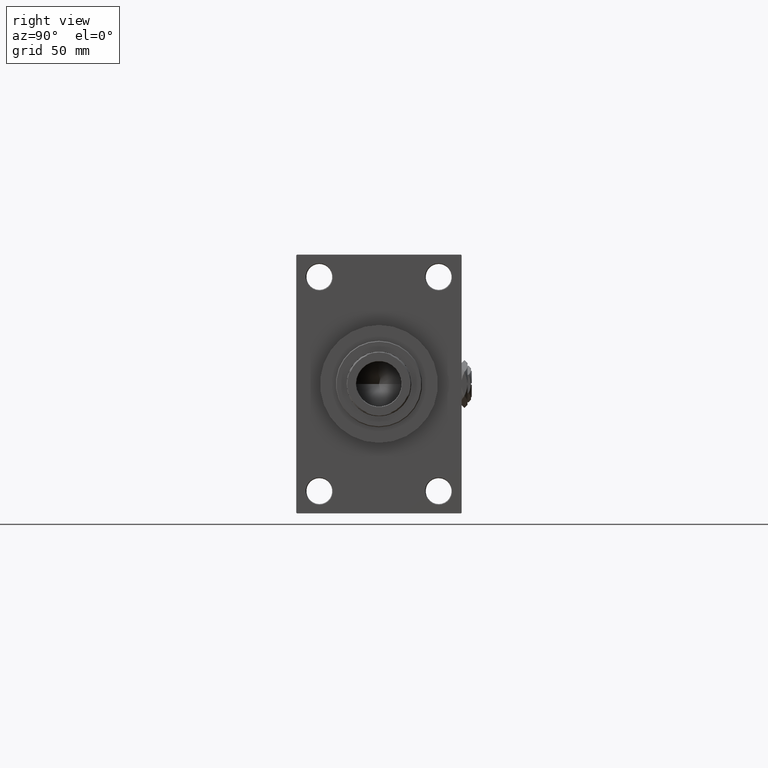
[diagram: clean part render]
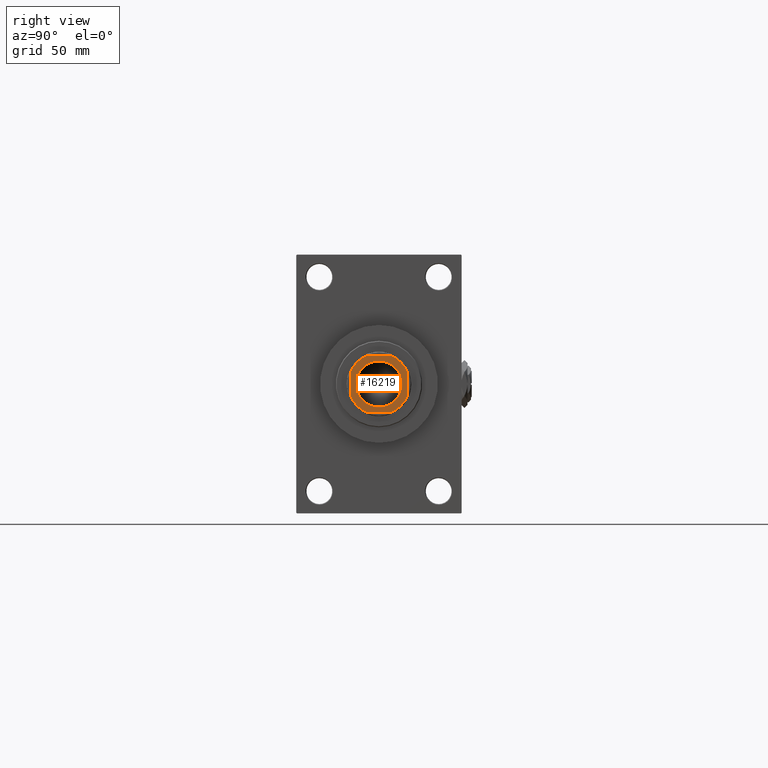
[diagram: same view with one face highlighted and labeled with its STEP entity id]
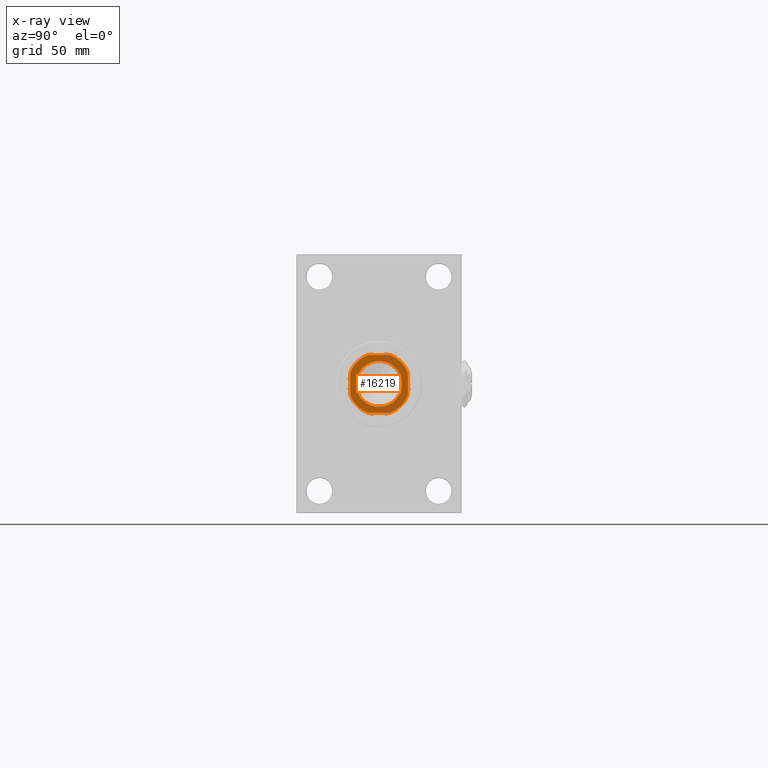
[diagram: x-ray of the same camera — body ghosted, the highlighted face saturated]
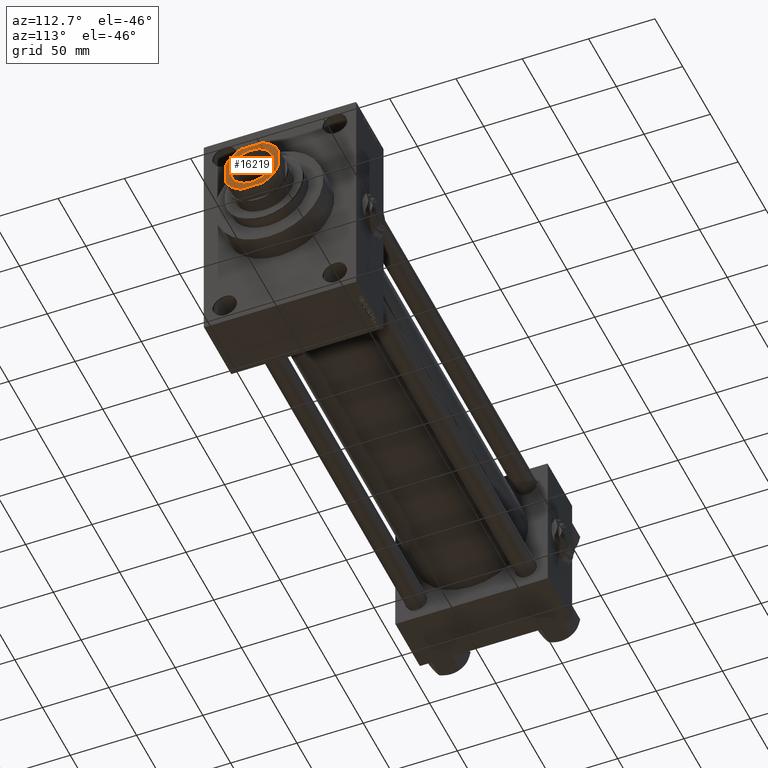
[diagram: same view with one face highlighted and labeled with its STEP entity id]
A machine part, right view. The second image highlights one B-rep face of the part: STEP entity #16219.
The next image is the same camera in x-ray: the body ghosted, the highlighted face saturated — about 0% of this face is hidden behind the body in this view.
A second angle (auxiliary view) of the same face is appended — the face is thin or edge-on in the first view.
In plain terms, the highlighted planar face has unit normal (1, 0, 0).
Its self-contained STEP definition (entity closure, byte-faithful):
#237 = EDGE_CURVE ( 'NONE', #49304, #33194, #22266, .T. ) ;
#495 = VECTOR ( 'NONE', #2632, 1000.000000000000000 ) ;
#1396 = DIRECTION ( 'NONE',  ( 1.000000000000000000, 0.000000000000000000, 0.000000000000000000 ) ) ;
#1694 = CARTESIAN_POINT ( 'NONE',  ( -20.00000000000000355, 20.00000000000000000, 396.0000000000000000 ) ) ;
#2632 = DIRECTION ( 'NONE',  ( 1.000000000000000000, 0.000000000000000000, 0.000000000000000000 ) ) ;
#2780 = VERTEX_POINT ( 'NONE', #8756 ) ;
#3813 = CARTESIAN_POINT ( 'NONE',  ( 0.000000000000000000, 0.000000000000000000, 396.0000000000000000 ) ) ;
#3948 = DIRECTION ( 'NONE',  ( 1.000000000000000000, 0.000000000000000000, 0.000000000000000000 ) ) ;
#4069 = DIRECTION ( 'NONE',  ( 1.000000000000000000, 0.000000000000000000, 0.000000000000000000 ) ) ;
#4198 = DIRECTION ( 'NONE',  ( 0.000000000000000000, -0.000000000000000000, -1.000000000000000000 ) ) ;
#5039 = CARTESIAN_POINT ( 'NONE',  ( 0.000000000000000000, 0.000000000000000000, 396.0000000000000000 ) ) ;
#5296 = ORIENTED_EDGE ( 'NONE', *, *, #31344, .T. ) ;
#5461 = DIRECTION ( 'NONE',  ( 1.734723475976807094E-16, -1.000000000000000000, 0.000000000000000000 ) ) ;
#5463 = VERTEX_POINT ( 'NONE', #43336 ) ;
#5476 = ORIENTED_EDGE ( 'NONE', *, *, #18944, .T. ) ;
#5869 = AXIS2_PLACEMENT_3D ( 'NONE', #13718, #47704, #1396 ) ;
#6827 = CARTESIAN_POINT ( 'NONE',  ( -20.00000000000000000, -7.889866919029596026, 396.0000000000000000 ) ) ;
#6983 = CARTESIAN_POINT ( 'NONE',  ( 20.00000000000000000, 7.889866919029596026, 396.0000000000000000 ) ) ;
#6989 = AXIS2_PLACEMENT_3D ( 'NONE', #15531, #4198, #3948 ) ;
#7575 = CIRCLE ( 'NONE', #41296, 16.04999999999995453 ) ;
#8090 = DIRECTION ( 'NONE',  ( -1.734723475976807094E-16, 1.000000000000000000, -0.000000000000000000 ) ) ;
#8756 = CARTESIAN_POINT ( 'NONE',  ( 7.889866919029819847, -20.00000000000000000, 396.0000000000000000 ) ) ;
#8759 = CARTESIAN_POINT ( 'NONE',  ( 20.00000000000000000, -7.889866919029816295, 396.0000000000000000 ) ) ;
#11100 = ORIENTED_EDGE ( 'NONE', *, *, #237, .T. ) ;
#11520 = EDGE_LOOP ( 'NONE', ( #45778, #11100 ) ) ;
#11756 = CIRCLE ( 'NONE', #30252, 21.49999999999994316 ) ;
#12040 = ORIENTED_EDGE ( 'NONE', *, *, #48680, .T. ) ;
#12852 = DIRECTION ( 'NONE',  ( 0.000000000000000000, -0.000000000000000000, -1.000000000000000000 ) ) ;
#13270 = CARTESIAN_POINT ( 'NONE',  ( -7.889866919029592474, 20.00000000000000000, 396.0000000000000000 ) ) ;
#13718 = CARTESIAN_POINT ( 'NONE',  ( 0.000000000000000000, 0.000000000000000000, 396.0000000000000000 ) ) ;
#14023 = CIRCLE ( 'NONE', #5869, 21.49999999999994316 ) ;
#14704 = ORIENTED_EDGE ( 'NONE', *, *, #47285, .T. ) ;
#15531 = CARTESIAN_POINT ( 'NONE',  ( 0.000000000000000000, 0.000000000000000000, 396.0000000000000000 ) ) ;
#15868 = DIRECTION ( 'NONE',  ( 1.000000000000000000, 0.000000000000000000, 0.000000000000000000 ) ) ;
#16219 = ADVANCED_FACE ( 'NONE', ( #29962, #34248 ), #49598, .T. ) ;
#16680 = ORIENTED_EDGE ( 'NONE', *, *, #27110, .T. ) ;
#17131 = AXIS2_PLACEMENT_3D ( 'NONE', #30490, #45831, #15868 ) ;
#17330 = CARTESIAN_POINT ( 'NONE',  ( 0.000000000000000000, 0.000000000000000000, 396.0000000000000000 ) ) ;
#18074 = EDGE_CURVE ( 'NONE', #33194, #49304, #7575, .T. ) ;
#18944 = EDGE_CURVE ( 'NONE', #28215, #34214, #14023, .T. ) ;
#21602 = DIRECTION ( 'NONE',  ( 1.000000000000000000, 0.000000000000000000, 0.000000000000000000 ) ) ;
#22266 = CIRCLE ( 'NONE', #6989, 16.04999999999995453 ) ;
#22396 = VECTOR ( 'NONE', #5461, 1000.000000000000000 ) ;
#23200 = DIRECTION ( 'NONE',  ( -0.000000000000000000, 0.000000000000000000, 1.000000000000000000 ) ) ;
#23509 = CARTESIAN_POINT ( 'NONE',  ( 7.889866919029590697, 20.00000000000000000, 396.0000000000000000 ) ) ;
#23796 = VERTEX_POINT ( 'NONE', #8759 ) ;
#24247 = EDGE_CURVE ( 'NONE', #23796, #28215, #34273, .T. ) ;
#24465 = DIRECTION ( 'NONE',  ( 1.000000000000000000, 0.000000000000000000, 0.000000000000000000 ) ) ;
#25339 = VECTOR ( 'NONE', #8090, 1000.000000000000000 ) ;
#26076 = CARTESIAN_POINT ( 'NONE',  ( -20.00000000000000355, 20.00000000000000000, 396.0000000000000000 ) ) ;
#26251 = CIRCLE ( 'NONE', #39917, 21.50000000000002487 ) ;
#27110 = EDGE_CURVE ( 'NONE', #37293, #2780, #36894, .T. ) ;
#28215 = VERTEX_POINT ( 'NONE', #6983 ) ;
#28624 = LINE ( 'NONE', #1694, #22396 ) ;
#28751 = CARTESIAN_POINT ( 'NONE',  ( 0.000000000000000000, 0.000000000000000000, 396.0000000000000000 ) ) ;
#28770 = VECTOR ( 'NONE', #30114, 1000.000000000000000 ) ;
#29918 = EDGE_LOOP ( 'NONE', ( #45966, #5476, #30880, #14704, #5296, #35829, #16680, #12040 ) ) ;
#29962 = FACE_BOUND ( 'NONE', #11520, .T. ) ;
#30114 = DIRECTION ( 'NONE',  ( -1.000000000000000000, -0.000000000000000000, -0.000000000000000000 ) ) ;
#30252 = AXIS2_PLACEMENT_3D ( 'NONE', #28751, #44097, #24465 ) ;
#30490 = CARTESIAN_POINT ( 'NONE',  ( 0.000000000000000000, 0.000000000000000000, 396.0000000000000000 ) ) ;
#30880 = ORIENTED_EDGE ( 'NONE', *, *, #33817, .T. ) ;
#31344 = EDGE_CURVE ( 'NONE', #5463, #49434, #28624, .T. ) ;
#31615 = EDGE_CURVE ( 'NONE', #49434, #37293, #48914, .T. ) ;
#32052 = AXIS2_PLACEMENT_3D ( 'NONE', #17330, #32698, #21602 ) ;
#32698 = DIRECTION ( 'NONE',  ( -0.000000000000000000, 0.000000000000000000, 1.000000000000000000 ) ) ;
#32721 = VERTEX_POINT ( 'NONE', #13270 ) ;
#32902 = CARTESIAN_POINT ( 'NONE',  ( -7.889866919029592474, -20.00000000000000000, 396.0000000000000000 ) ) ;
#33194 = VERTEX_POINT ( 'NONE', #39041 ) ;
#33817 = EDGE_CURVE ( 'NONE', #34214, #32721, #42444, .T. ) ;
#34214 = VERTEX_POINT ( 'NONE', #23509 ) ;
#34248 = FACE_OUTER_BOUND ( 'NONE', #29918, .T. ) ;
#34273 = LINE ( 'NONE', #34776, #25339 ) ;
#34776 = CARTESIAN_POINT ( 'NONE',  ( 19.99999999999999645, 20.00000000000000000, 396.0000000000000000 ) ) ;
#35829 = ORIENTED_EDGE ( 'NONE', *, *, #31615, .T. ) ;
#36894 = LINE ( 'NONE', #47971, #495 ) ;
#37293 = VERTEX_POINT ( 'NONE', #32902 ) ;
#39041 = CARTESIAN_POINT ( 'NONE',  ( 16.04999999999995453, 0.000000000000000000, 396.0000000000000000 ) ) ;
#39917 = AXIS2_PLACEMENT_3D ( 'NONE', #3813, #23200, #4069 ) ;
#40102 = CARTESIAN_POINT ( 'NONE',  ( -16.04999999999995453, 1.965558112631495894E-15, 396.0000000000000000 ) ) ;
#41296 = AXIS2_PLACEMENT_3D ( 'NONE', #5039, #12852, #42567 ) ;
#42444 = LINE ( 'NONE', #26076, #28770 ) ;
#42567 = DIRECTION ( 'NONE',  ( 1.000000000000000000, 0.000000000000000000, 0.000000000000000000 ) ) ;
#43336 = CARTESIAN_POINT ( 'NONE',  ( -20.00000000000000000, 7.889866919029588921, 396.0000000000000000 ) ) ;
#44097 = DIRECTION ( 'NONE',  ( -0.000000000000000000, 0.000000000000000000, 1.000000000000000000 ) ) ;
#45778 = ORIENTED_EDGE ( 'NONE', *, *, #18074, .T. ) ;
#45831 = DIRECTION ( 'NONE',  ( -0.000000000000000000, 0.000000000000000000, 1.000000000000000000 ) ) ;
#45966 = ORIENTED_EDGE ( 'NONE', *, *, #24247, .T. ) ;
#47285 = EDGE_CURVE ( 'NONE', #32721, #5463, #11756, .T. ) ;
#47704 = DIRECTION ( 'NONE',  ( -0.000000000000000000, 0.000000000000000000, 1.000000000000000000 ) ) ;
#47971 = CARTESIAN_POINT ( 'NONE',  ( -19.99999999999999645, -20.00000000000000000, 396.0000000000000000 ) ) ;
#48680 = EDGE_CURVE ( 'NONE', #2780, #23796, #26251, .T. ) ;
#48914 = CIRCLE ( 'NONE', #32052, 21.49999999999994316 ) ;
#49304 = VERTEX_POINT ( 'NONE', #40102 ) ;
#49434 = VERTEX_POINT ( 'NONE', #6827 ) ;
#49598 = PLANE ( 'NONE',  #17131 ) ;